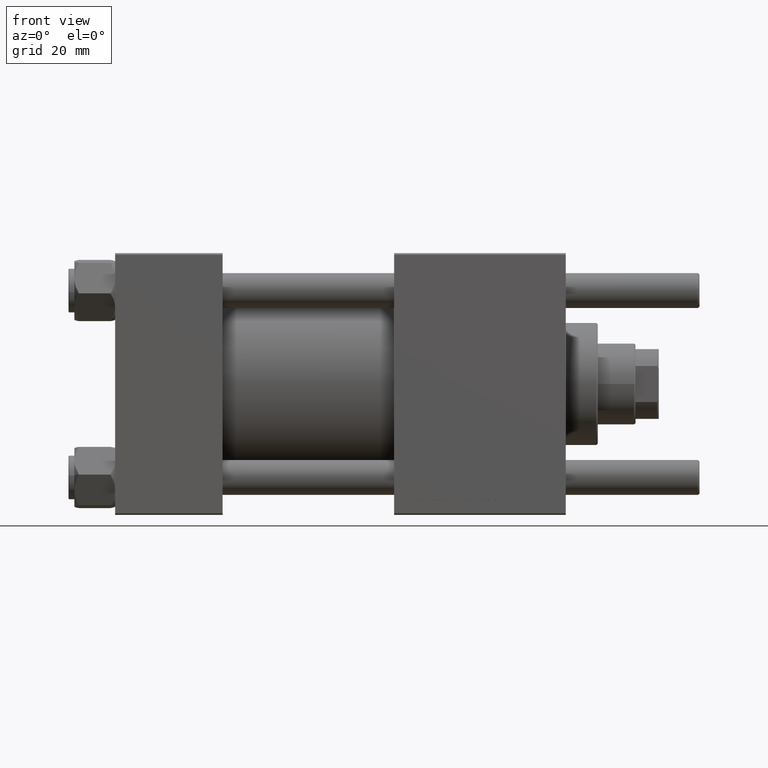
[diagram: clean part render]
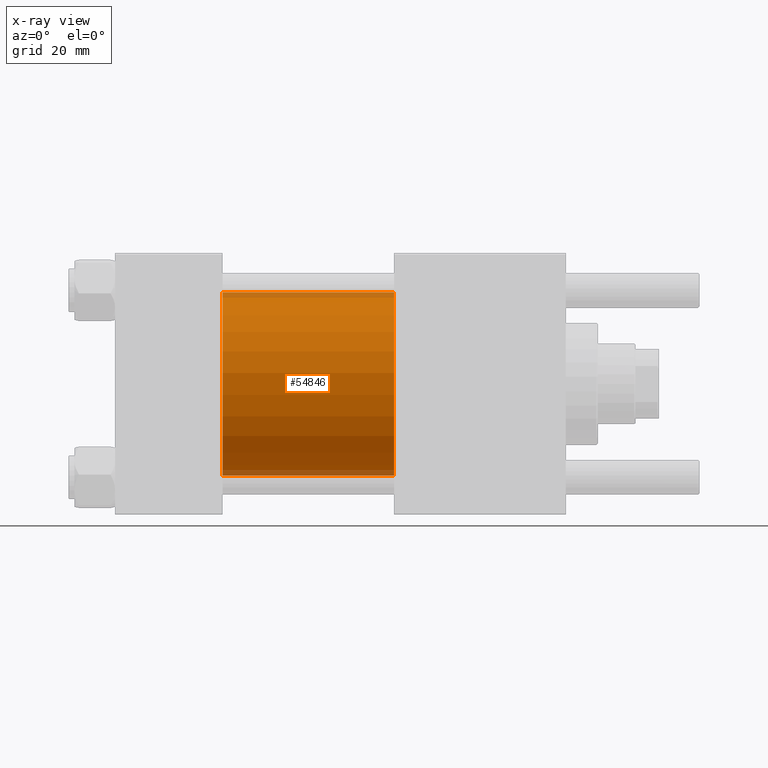
[diagram: x-ray — body ghosted, one internal face saturated and labeled with its STEP entity id]
A machine part, front view, then the same camera in x-ray: the body is ghosted and one INTERNAL B-rep face — a face not visible from any outside direction — is saturated and labeled: STEP entity #54846.
In plain terms, the highlighted cylindrical surface (partial cylindrical patch) has radius 31.5 mm, axis along (-1, -0, -0).
Its self-contained STEP definition (entity closure, byte-faithful):
#2310 = CARTESIAN_POINT ( 'NONE',  ( 37.00000000000000000, -2.602085213965210642E-15, 31.50000000000000000 ) ) ;
#2350 = VERTEX_POINT ( 'NONE', #2310 ) ;
#3530 = CARTESIAN_POINT ( 'NONE',  ( 96.00000000000000000, -2.602085213965210642E-15, 0.000000000000000000 ) ) ;
#4673 = LINE ( 'NONE', #52858, #17687 ) ;
#8917 = DIRECTION ( 'NONE',  ( 1.000000000000000000, 0.000000000000000000, 0.000000000000000000 ) ) ;
#9344 = CIRCLE ( 'NONE', #22184, 31.50000000000000000 ) ;
#10807 = DIRECTION ( 'NONE',  ( -1.000000000000000000, -0.000000000000000000, -0.000000000000000000 ) ) ;
#12365 = VERTEX_POINT ( 'NONE', #42307 ) ;
#12436 = DIRECTION ( 'NONE',  ( 1.000000000000000000, 0.000000000000000000, 0.000000000000000000 ) ) ;
#13783 = VERTEX_POINT ( 'NONE', #35262 ) ;
#15417 = FACE_OUTER_BOUND ( 'NONE', #46225, .T. ) ;
#17687 = VECTOR ( 'NONE', #44239, 1000.000000000000000 ) ;
#22184 = AXIS2_PLACEMENT_3D ( 'NONE', #31563, #8917, #53073 ) ;
#24283 = DIRECTION ( 'NONE',  ( -1.000000000000000000, -0.000000000000000000, -0.000000000000000000 ) ) ;
#24851 = CYLINDRICAL_SURFACE ( 'NONE', #46460, 31.50000000000000000 ) ;
#25014 = CARTESIAN_POINT ( 'NONE',  ( 96.00000000000000000, -2.602085213965210642E-15, 31.50000000000000000 ) ) ;
#25391 = CIRCLE ( 'NONE', #56507, 31.50000000000000000 ) ;
#25722 = VECTOR ( 'NONE', #10807, 1000.000000000000000 ) ;
#30258 = EDGE_CURVE ( 'NONE', #42661, #2350, #37173, .T. ) ;
#30757 = DIRECTION ( 'NONE',  ( 0.000000000000000000, 0.000000000000000000, -1.000000000000000000 ) ) ;
#31563 = CARTESIAN_POINT ( 'NONE',  ( 37.00000000000000000, -2.602085213965210642E-15, 0.000000000000000000 ) ) ;
#33043 = ORIENTED_EDGE ( 'NONE', *, *, #30258, .F. ) ;
#33466 = ORIENTED_EDGE ( 'NONE', *, *, #53910, .T. ) ;
#33927 = EDGE_CURVE ( 'NONE', #2350, #13783, #9344, .T. ) ;
#35262 = CARTESIAN_POINT ( 'NONE',  ( 37.00000000000000000, 1.255552203348951850E-15, -31.50000000000000000 ) ) ;
#37173 = LINE ( 'NONE', #40916, #25722 ) ;
#37175 = EDGE_CURVE ( 'NONE', #12365, #13783, #4673, .T. ) ;
#37475 = CARTESIAN_POINT ( 'NONE',  ( 96.00000000000000000, -2.602085213965210642E-15, 0.000000000000000000 ) ) ;
#40916 = CARTESIAN_POINT ( 'NONE',  ( 96.00000000000000000, -2.602085213965210642E-15, 31.50000000000000000 ) ) ;
#42307 = CARTESIAN_POINT ( 'NONE',  ( 96.00000000000000000, 1.255552203348951850E-15, -31.50000000000000000 ) ) ;
#42661 = VERTEX_POINT ( 'NONE', #25014 ) ;
#44239 = DIRECTION ( 'NONE',  ( -1.000000000000000000, -0.000000000000000000, -0.000000000000000000 ) ) ;
#46067 = DIRECTION ( 'NONE',  ( 0.000000000000000000, 0.000000000000000000, 1.000000000000000000 ) ) ;
#46225 = EDGE_LOOP ( 'NONE', ( #33466, #51527, #50798, #33043 ) ) ;
#46460 = AXIS2_PLACEMENT_3D ( 'NONE', #37475, #24283, #46067 ) ;
#50798 = ORIENTED_EDGE ( 'NONE', *, *, #33927, .F. ) ;
#51527 = ORIENTED_EDGE ( 'NONE', *, *, #37175, .T. ) ;
#52858 = CARTESIAN_POINT ( 'NONE',  ( 96.00000000000000000, 1.255552203348951850E-15, -31.50000000000000000 ) ) ;
#53073 = DIRECTION ( 'NONE',  ( 0.000000000000000000, 0.000000000000000000, -1.000000000000000000 ) ) ;
#53910 = EDGE_CURVE ( 'NONE', #42661, #12365, #25391, .T. ) ;
#54846 = ADVANCED_FACE ( 'NONE', ( #15417 ), #24851, .F. ) ;
#56507 = AXIS2_PLACEMENT_3D ( 'NONE', #3530, #12436, #30757 ) ;